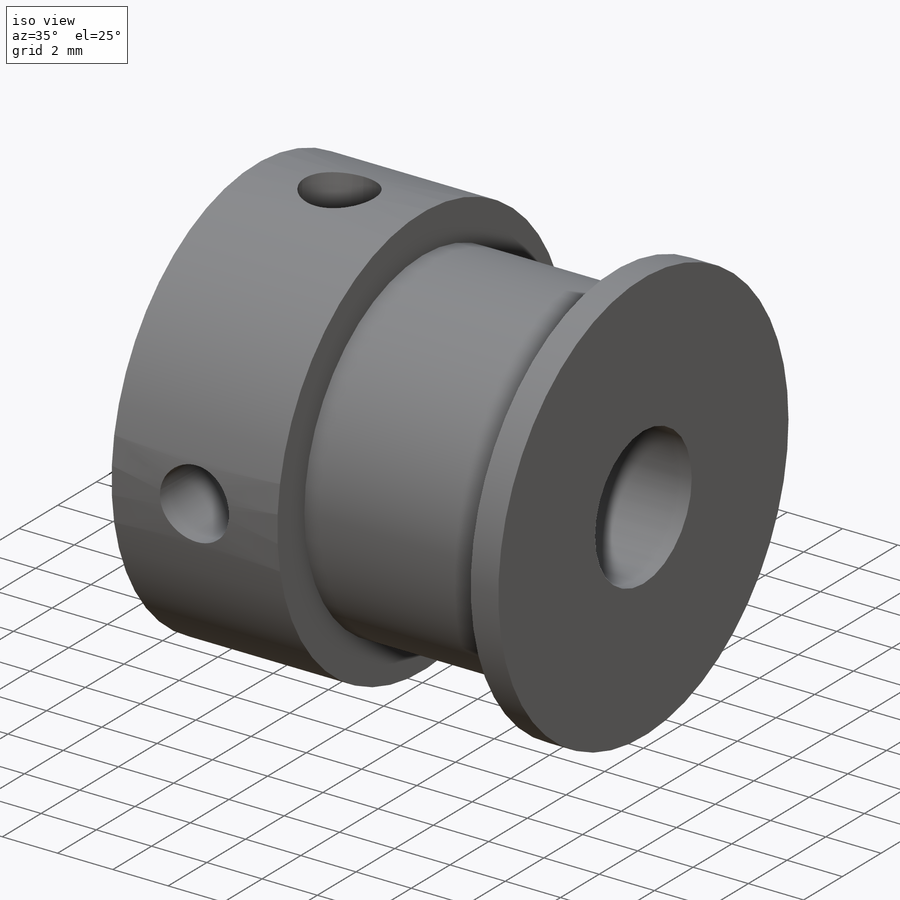
[diagram: iso view]
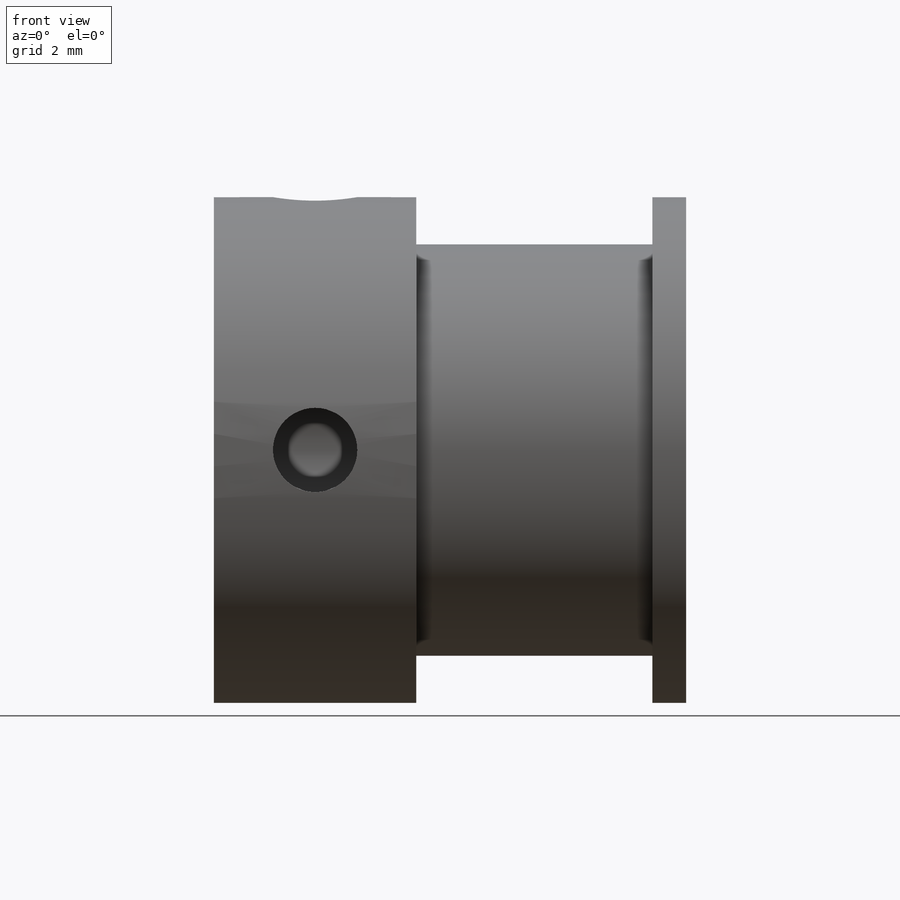
[diagram: front view]
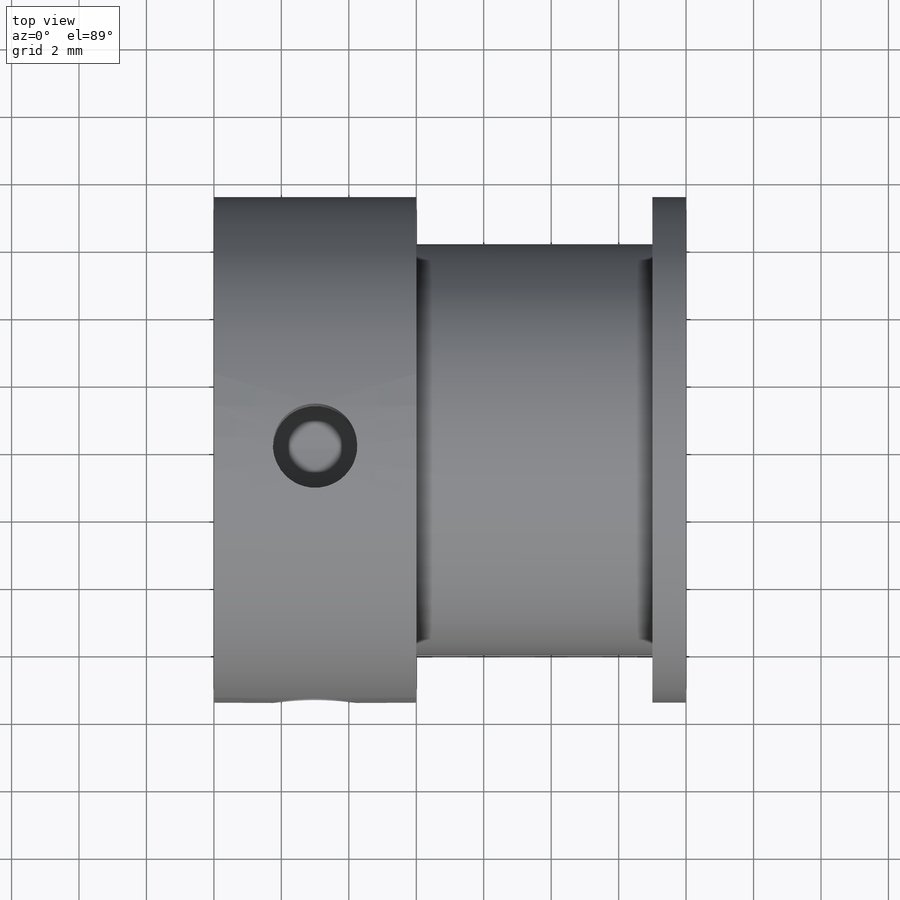
[diagram: top view]
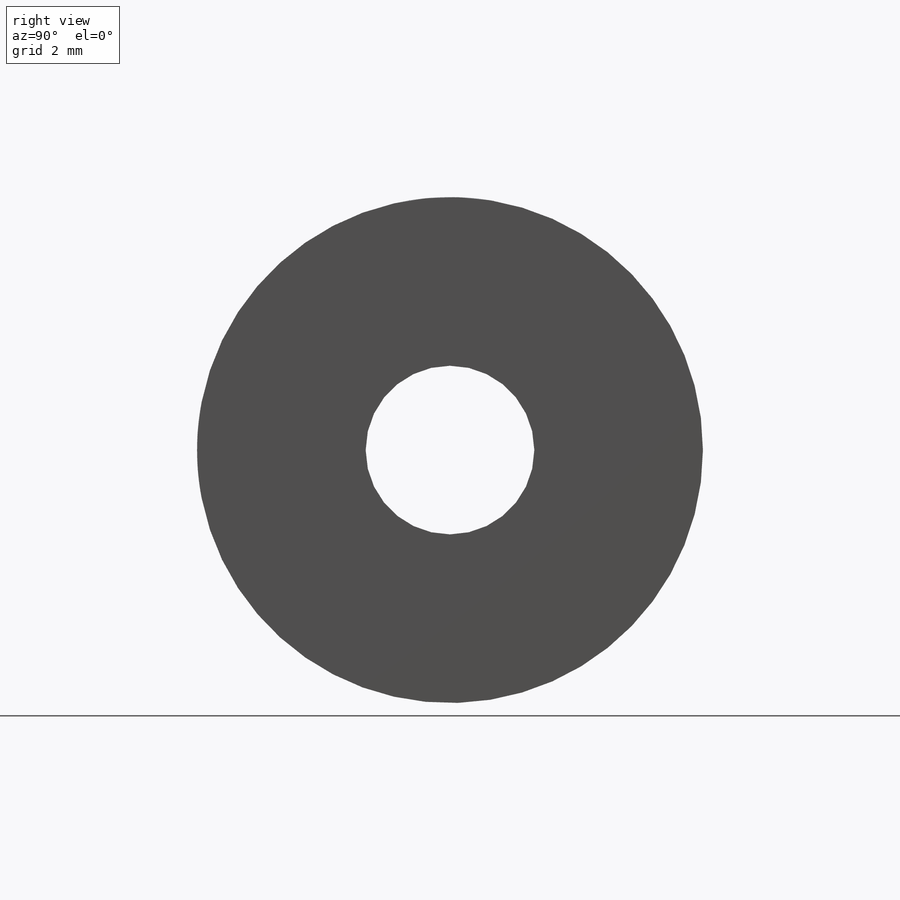
[diagram: right view]
SOLIDWORKS PART (.sldprt)
format: sldprt  version: not decoded by parser v0  size: 240,128 bytes
history: native  units: mm
features: sketch x5, hole x2, material x1, revolve x1 (+13 scaffold rows collapsed)
feature tree (22):
  scaffold x13  (default folders/planes/origin — collapsed)
  material  "6061-T6 (SS)"
  sketch  "Sketch1"  dims[D1=5.0mm D2=15.0mm D3=12.2mm D4=6.0mm D5=14.0mm D6=1.0mm]
  revolve  "Revolve1"  Angle=360deg
  hole  "M3x0.5 Tapped Hole1"  Diameter=2.5mm Depth=7.5mm
  sketch  "Sketch3"
  sketch  "Sketch2"  dims[hole-wizard template sketch: 60 standard entries collapsed; hole parameters kept: c18.Thru Tap Drill Depth=7.5mm]
  hole  "M3x0.5 Tapped Hole2"  Diameter=2.5mm Depth=7.5mm
  sketch  "Sketch5"
  sketch  "Sketch4"  dims[hole-wizard template sketch: 60 standard entries collapsed; hole parameters kept: c18.Thru Tap Drill Depth=7.5mm]
decode coverage: 6 of 8 modeling features carry decoded parameters
note: ~ marks probable driven/reference dimensions
note: suppression state not decoded; provenance and decode notes live in map.json
